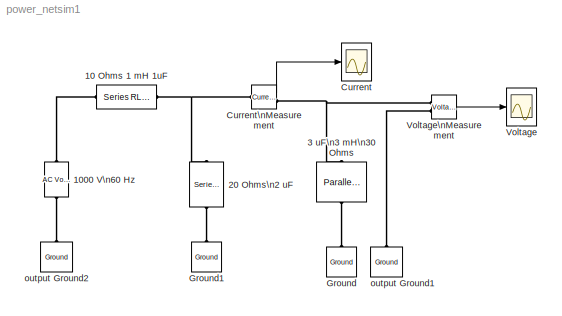
MODEL power_netsim1
KIND model
BLOCK [Reference] 10 Ohms 1 mH 1uF  REF=powerlib/Elements/Series RLC Branch
  AttributesFormatString = \\n
  Capacitance = 1e-06
  Inductance = 1e-03
  LConnTagsString = __new0
  Measurements = None
  PhysicalDomain = powersysdomain
  PortType = p1
  Ports = [0, 0, 0, 0, 0, 1, 1]
  RConnTagsString = __new0
  Resistance = 10
  SourceBlock = powerlib/Elements/Series RLC Branch
  SourceType = Series RLC Branch
  SubClassName = unknown
BLOCK [Reference] 1000 V\n60 Hz  REF=powerlib/Electrical\nSources/AC Voltage Source
  Amplitude = 1000
  AttributesFormatString = \\n
  Description = source block
  Frequency = 60
  Measurements = None
  Phase = 0
  Ports = [0, 0, 0, 0, 0, 1, 1]
  SampleTime = 0
  SourceBlock = powerlib/Electrical\nSources/AC Voltage Source
  SourceType = AC Voltage Source
BLOCK [Reference] 20 Ohms\n2 uF  REF=powerlib/Elements/Series RLC Branch
  AttributesFormatString = \\n
  Capacitance = 2e-06
  Inductance = 0
  LConnTagsString = __new0
  Measurements = None
  PhysicalDomain = powersysdomain
  PortType = p1
  Ports = [0, 0, 0, 0, 0, 1, 1]
  RConnTagsString = __new0
  Resistance = 20
  SourceBlock = powerlib/Elements/Series RLC Branch
  SourceType = Series RLC Branch
  SubClassName = unknown
BLOCK [Reference] 3 uF\n3 mH\n30 Ohms  REF=powerlib/Elements/Parallel RLC Branch
  AttributesFormatString = \\n
  Capacitance = 3e-06
  Inductance = 3e-03
  LConnTagsString = a
  Measurements = None
  PhysicalDomain = powersysdomain
  PortType = p1
  Ports = [0, 0, 0, 0, 0, 1, 1]
  RConnTagsString = __new0
  Resistance = 30
  SourceBlock = powerlib/Elements/Parallel RLC Branch
  SourceType = Parallel RLC Branch
  SubClassName = unknown
BLOCK [Scope] Current
  DataFormat = Array
  MaxDataPoints = 100000
  NumInputPorts = 1
  Ports = [1]
  TickLabels = on
  YMax = 0.5
  YMin = -0.5
BLOCK [Reference] Current\nMeasurement  REF=powerlib/Measurements/Current Measurement
  AttributesFormatString = \\n
  OutputType = Magnitude
  PSBequivalent = 0
  PhasorSimulation = off
  Ports = [0, 1, 0, 0, 0, 1, 1]
  SourceBlock = powerlib/Measurements/Current Measurement
  SourceType = Current Measurement
  Tag = PoWeRsYsTeMmEaSuReMeNt
BLOCK [Reference] Ground  REF=powerlib/Elements/Ground
  AttributesFormatString = \\n
  LConnTagsString = a
  PhysicalDomain = powersysdomain
  PortType = p1
  Ports = [0, 0, 0, 0, 0, 1, 1]
  RConnTagsString = __newr0
  SourceBlock = powerlib/Elements/Ground
  SourceType = Ground
  SubClassName = unknown
BLOCK [Reference] Ground1  REF=powerlib/Elements/Ground
  AttributesFormatString = \\n
  LConnTagsString = a
  PhysicalDomain = powersysdomain
  PortType = p1
  Ports = [0, 0, 0, 0, 0, 1, 1]
  RConnTagsString = __newr0
  SourceBlock = powerlib/Elements/Ground
  SourceType = Ground
  SubClassName = unknown
BLOCK [Scope] Voltage
  DataFormat = Array
  MaxDataPoints = 100000
  NumInputPorts = 1
  Ports = [1]
  TickLabels = on
  YMax = 0.5
  YMin = -0.5
BLOCK [Reference] Voltage\nMeasurement  REF=powerlib/Measurements/Voltage Measurement
  AttributesFormatString = \\n
  OutputType = Magnitude
  PSBequivalent = 0
  PhasorSimulation = off
  Ports = [0, 1, 0, 0, 0, 2]
  SourceBlock = powerlib/Measurements/Voltage Measurement
  SourceType = Voltage Measurement
  Tag = PoWeRsYsTeMmEaSuReMeNt
BLOCK [Reference] output Ground1  REF=powerlib/Elements/Ground
  AttributesFormatString = \\n
  LConnTagsString = a
  PhysicalDomain = powersysdomain
  PortType = p1
  Ports = [0, 0, 0, 0, 0, 1, 1]
  RConnTagsString = __newr0
  SourceBlock = powerlib/Elements/Ground
  SourceType = Ground
  SubClassName = unknown
BLOCK [Reference] output Ground2  REF=powerlib/Elements/Ground
  AttributesFormatString = \\n
  LConnTagsString = a
  PhysicalDomain = powersysdomain
  PortType = p1
  Ports = [0, 0, 0, 0, 0, 1, 1]
  RConnTagsString = __newr0
  SourceBlock = powerlib/Elements/Ground
  SourceType = Ground
  SubClassName = unknown
LINE Current\nMeasurement:1 -> Current:1
LINE Voltage\nMeasurement:1 -> Voltage:1
PLINE 10 Ohms 1 mH 1uF:LConn1 -- 1000 V\n60 Hz:RConn1
PNET net1: 10 Ohms 1 mH 1uF:RConn1 -- 20 Ohms\n2 uF:LConn1 -- Current\nMeasurement:LConn1
PLINE 1000 V\n60 Hz:LConn1 -- output Ground2:LConn1
PLINE 20 Ohms\n2 uF:RConn1 -- Ground1:LConn1
PNET net2: 3 uF\n3 mH\n30 Ohms:LConn1 -- Current\nMeasurement:RConn1 -- Voltage\nMeasurement:LConn1
PLINE 3 uF\n3 mH\n30 Ohms:RConn1 -- Ground:LConn1
PLINE Voltage\nMeasurement:LConn2 -- output Ground1:LConn1
note: PNET lines group multi-terminal physical nets as a canonical sorted terminal list (undirected conserving connections); 2-terminal nets keep the pairwise PLINE form
